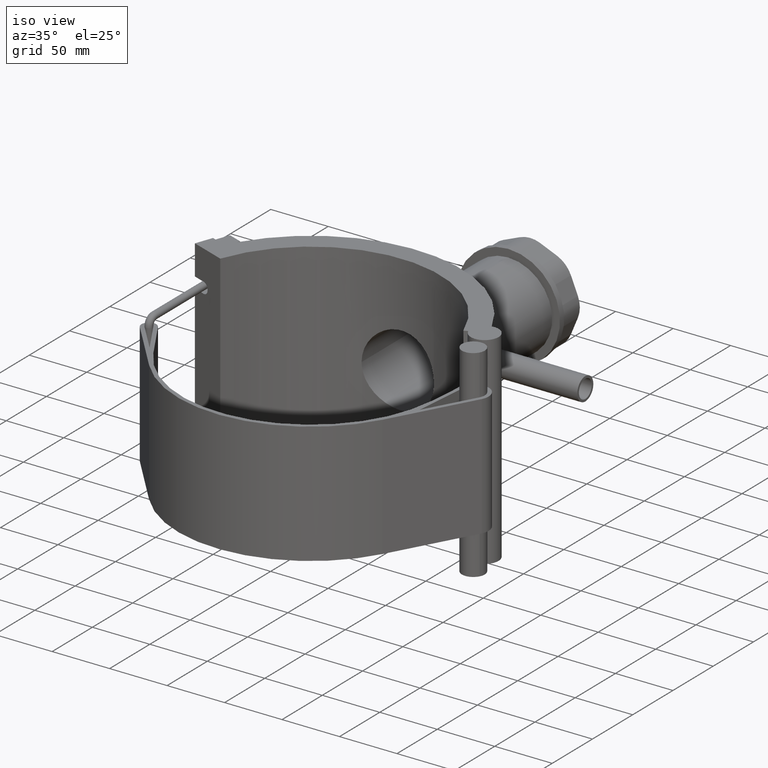
[diagram: clean part render]
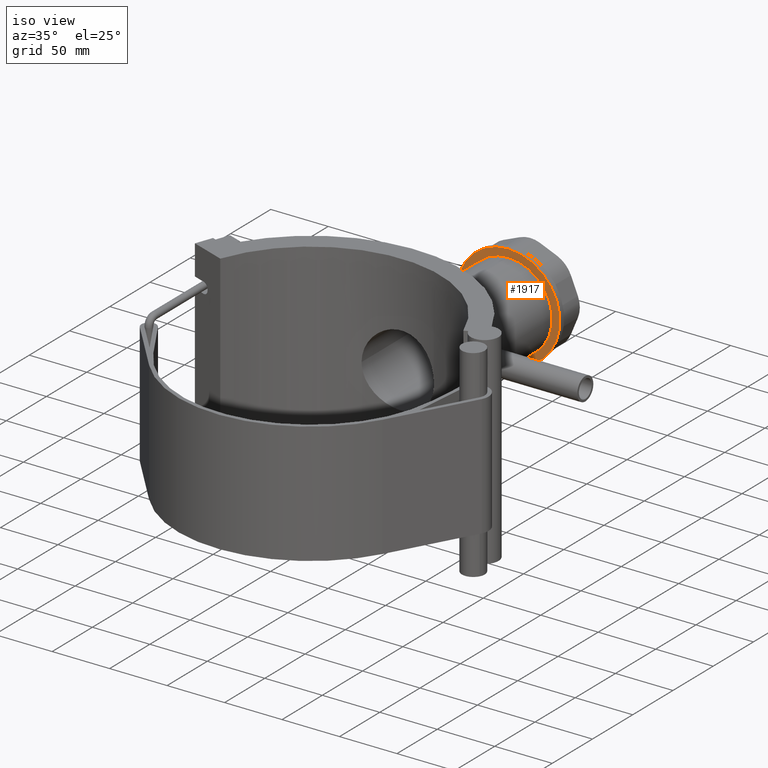
[diagram: same view with one face highlighted and labeled with its STEP entity id]
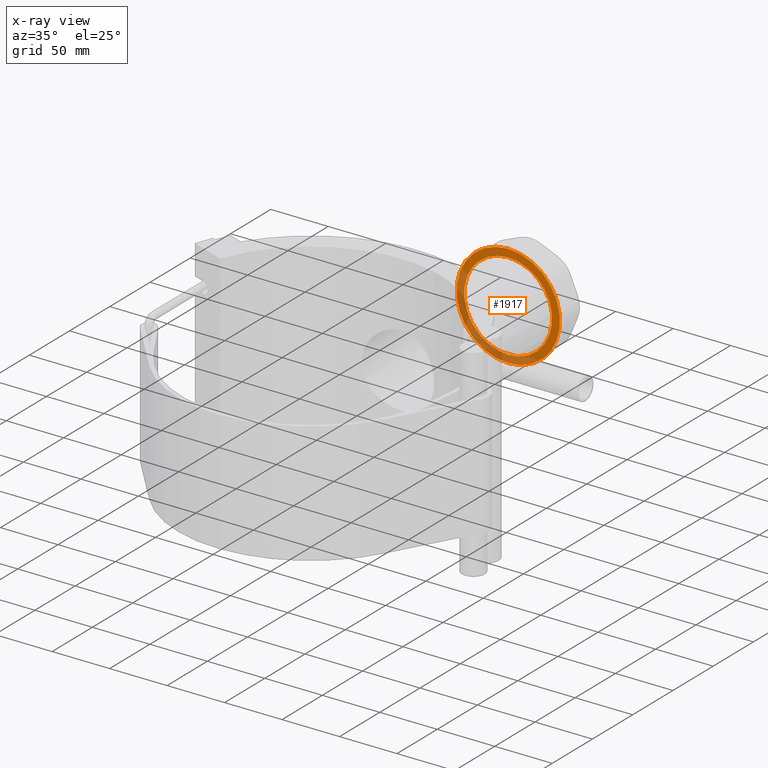
[diagram: x-ray of the same camera — body ghosted, the highlighted face saturated]
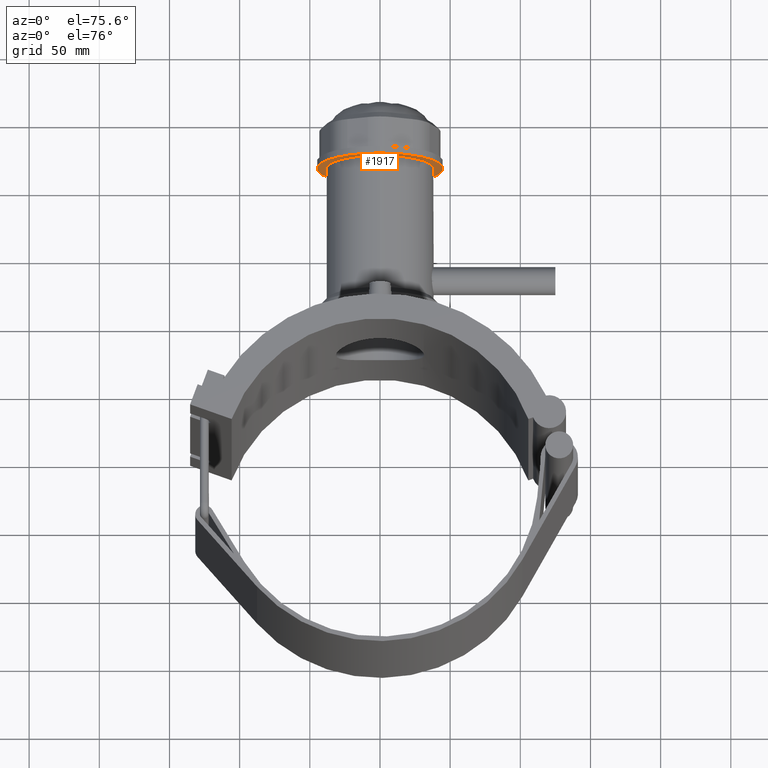
[diagram: same view with one face highlighted and labeled with its STEP entity id]
A machine part, iso view. The second image highlights one B-rep face of the part: STEP entity #1917.
The next image is the same camera in x-ray: the body ghosted, the highlighted face saturated — about 40% of this face is hidden behind the body in this view.
A second angle (auxiliary view) of the same face is appended — the face is thin or edge-on in the first view.
In plain terms, the highlighted planar face has unit normal (0, -1, -0).
Its self-contained STEP definition (entity closure, byte-faithful):
#372=FACE_BOUND('',#629,.T.);
#496=FACE_OUTER_BOUND('',#628,.T.);
#628=EDGE_LOOP('',(#1450));
#629=EDGE_LOOP('',(#1451));
#765=CIRCLE('',#2071,38.25);
#766=CIRCLE('',#2073,45.);
#879=VERTEX_POINT('',#3221);
#880=VERTEX_POINT('',#3224);
#1090=EDGE_CURVE('',#879,#879,#765,.T.);
#1091=EDGE_CURVE('',#880,#880,#766,.T.);
#1450=ORIENTED_EDGE('',*,*,#1091,.F.);
#1451=ORIENTED_EDGE('',*,*,#1090,.T.);
#1826=PLANE('',#2072);
#1917=ADVANCED_FACE('',(#496,#372),#1826,.T.);
#2071=AXIS2_PLACEMENT_3D('',#3222,#2416,#2417);
#2072=AXIS2_PLACEMENT_3D('',#3223,#2418,#2419);
#2073=AXIS2_PLACEMENT_3D('',#3225,#2420,#2421);
#2416=DIRECTION('center_axis',(0.,1.,3.06161699786838E-16));
#2417=DIRECTION('ref_axis',(1.,0.,0.));
#2418=DIRECTION('center_axis',(0.,-1.,-3.06161699786838E-16));
#2419=DIRECTION('ref_axis',(0.,0.,-1.));
#2420=DIRECTION('center_axis',(0.,1.,3.06161699786838E-16));
#2421=DIRECTION('ref_axis',(1.,0.,0.));
#3221=CARTESIAN_POINT('',(0.,245.25,38.2500000000001));
#3222=CARTESIAN_POINT('Origin',(0.,245.25,4.06429656467028E-14));
#3223=CARTESIAN_POINT('Origin',(0.,245.25,45.0000000000001));
#3224=CARTESIAN_POINT('',(0.,245.25,45.0000000000001));
#3225=CARTESIAN_POINT('Origin',(0.,245.25,4.06429656467028E-14));